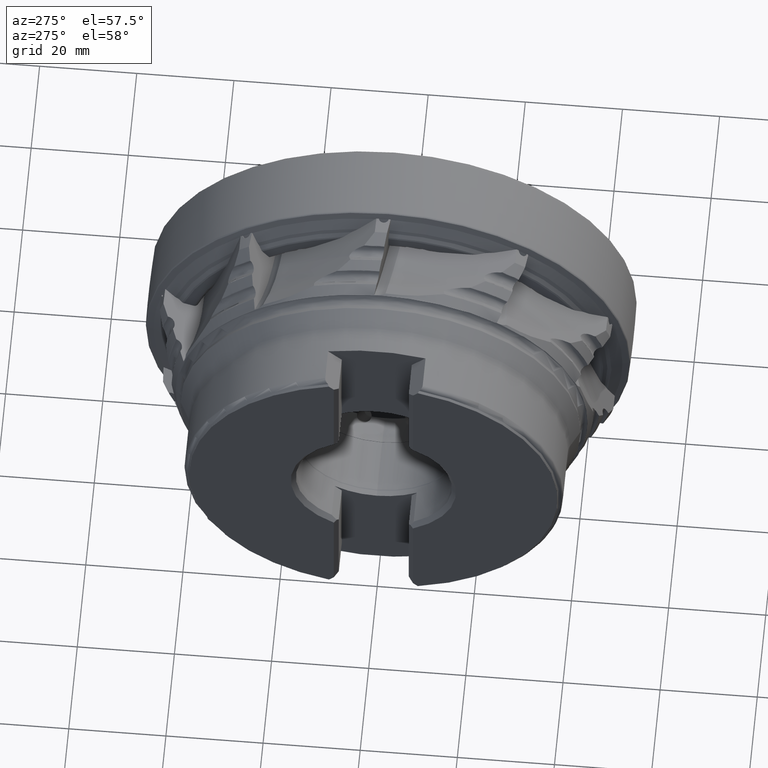
[diagram: clean part render]
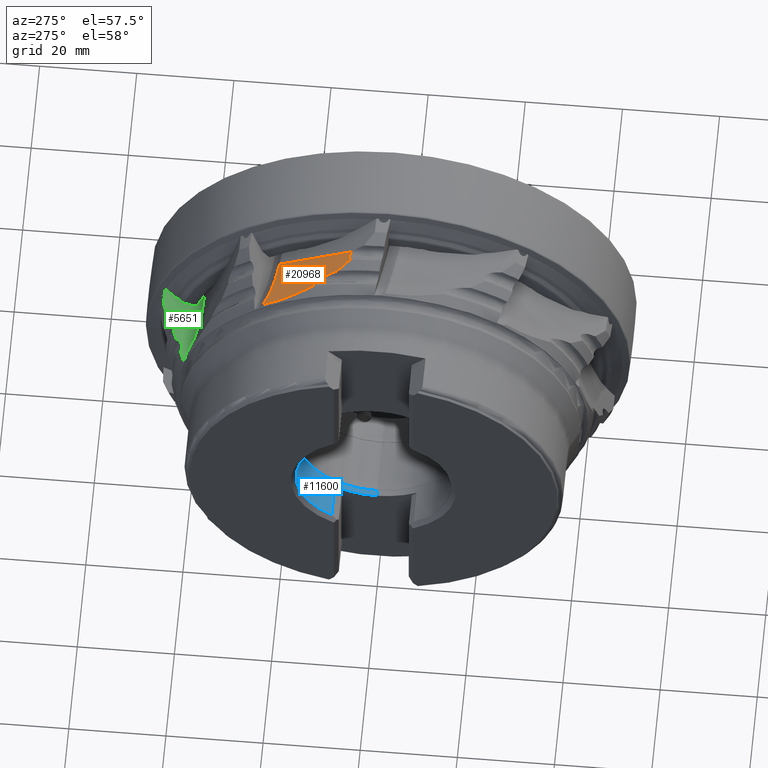
[diagram: same view with three faces highlighted in distinct colors, each labeled with its STEP entity id]
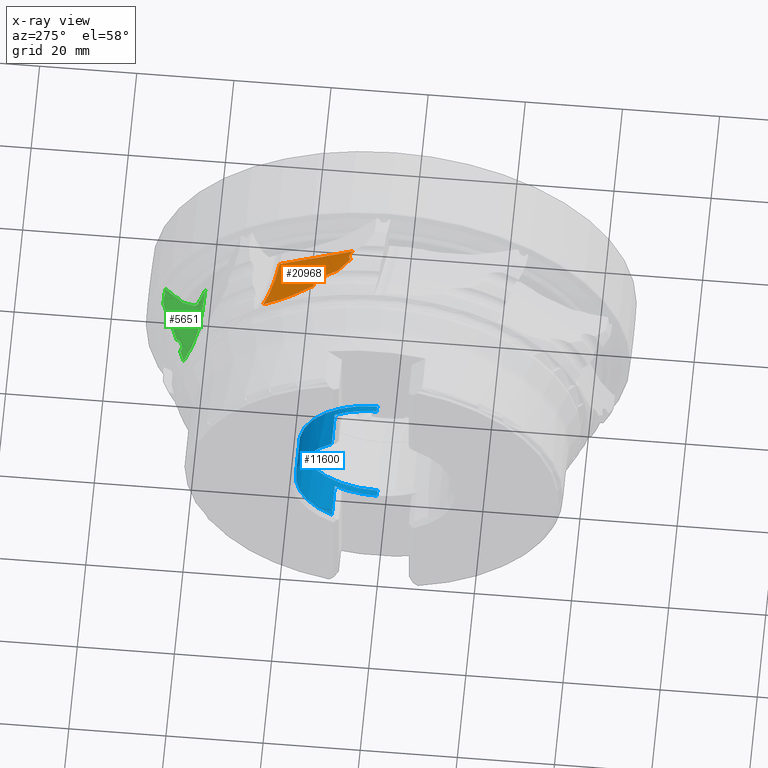
[diagram: x-ray of the same camera — body ghosted, the three highlighted faces saturated]
A machine part, auxiliary view with three faces highlighted in distinct colors.
The next image is the same camera in x-ray (body ghosted, the three faces saturated) — at least one of them is partly hidden behind the body in this view.
Their STEP definitions:

[orange] entity #20968 — the highlighted cylindrical surface (partial cylindrical patch) has radius 28 mm, axis along (0.1392, 0.8011, -0.5821).
#353 = ORIENTED_EDGE ( 'NONE', *, *, #2107, .F. ) ;
#714 = CARTESIAN_POINT ( 'NONE',  ( -18.18918041566172761, 40.19257685339723452, 55.46904006461861769 ) ) ;
#800 = CARTESIAN_POINT ( 'NONE',  ( -23.03409179718986266, 7.044118574288702028, 45.02435332535845447 ) ) ;
#877 = EDGE_CURVE ( 'NONE', #1981, #7855, #17546, .T. ) ;
#1087 = ORIENTED_EDGE ( 'NONE', *, *, #877, .F. ) ;
#1208 = CARTESIAN_POINT ( 'NONE',  ( -27.07497787964696201, 14.27244650816292726, 40.81565486928966635 ) ) ;
#1319 = CARTESIAN_POINT ( 'NONE',  ( -25.05482573333789631, 9.512889654847704435, 43.56328651314723999 ) ) ;
#1333 = CARTESIAN_POINT ( 'NONE',  ( -26.72532341960266677, 14.17027873603239740, 40.77836875804748473 ) ) ;
#1540 = CARTESIAN_POINT ( 'NONE',  ( -27.31591779571575884, 14.16987948358504568, 40.96089669837865443 ) ) ;
#1549 = EDGE_LOOP ( 'NONE', ( #353, #5532, #19638, #11902, #1087, #11925, #7132, #13696, #21440, #10460, #9828 ) ) ;
#1981 = VERTEX_POINT ( 'NONE', #15173 ) ;
#2107 = EDGE_CURVE ( 'NONE', #9624, #15590, #22100, .T. ) ;
#2169 = CARTESIAN_POINT ( 'NONE',  ( -23.05000000000050164, 7.059552992101698621, 45.01470226519708007 ) ) ;
#2233 = EDGE_CURVE ( 'NONE', #5417, #10005, #14829, .T. ) ;
#2278 = DIRECTION ( 'NONE',  ( 0.1391731009600655489, 0.8011436965987820402, -0.5820649666224535501 ) ) ;
#2388 = CARTESIAN_POINT ( 'NONE',  ( -22.93827435148161697, 7.008692015442258061, 45.04179523510972416 ) ) ;
#2607 = CARTESIAN_POINT ( 'NONE',  ( -22.88075694319212161, 7.029482086195025126, 45.02248342708438145 ) ) ;
#2804 = CARTESIAN_POINT ( 'NONE',  ( -25.14768867587290657, 10.19223871036903262, 43.11022617272362822 ) ) ;
#3115 = EDGE_CURVE ( 'NONE', #9692, #4079, #20855, .T. ) ;
#3125 = CARTESIAN_POINT ( 'NONE',  ( -26.66500952554514114, 14.12589208070728297, 40.79064592021736502 ) ) ;
#3329 = B_SPLINE_CURVE_WITH_KNOTS ( 'NONE', 3,
 ( #8981, #14260, #6943, #7066, #9081, #21039 ),
 .UNSPECIFIED., .F., .F.,
 ( 4, 2, 4 ),
 ( 0.004184788278402151208, 0.004613843619188201864, 0.005042898959974253387 ),
 .UNSPECIFIED. ) ;
#3568 = DIRECTION ( 'NONE',  ( 0.1391731009600655489, 0.8011436965987839276, -0.5820649666224511076 ) ) ;
#3734 = DIRECTION ( 'NONE',  ( 0.0000000000000000000, 0.5877852522924801315, 0.8090169943749422332 ) ) ;
#3833 = CARTESIAN_POINT ( 'NONE',  ( -23.76897510292745608, 7.806502856513447774, 44.54359357852328571 ) ) ;
#3863 = CARTESIAN_POINT ( 'NONE',  ( -22.86225597063971904, 7.044831233458568320, 45.01012155648952984 ) ) ;
#3957 = FACE_OUTER_BOUND ( 'NONE', #1549, .T. ) ;
#4021 = CARTESIAN_POINT ( 'NONE',  ( -21.89722909810100759, 7.292179398105697707, 44.77810380523596478 ) ) ;
#4079 = VERTEX_POINT ( 'NONE', #4383 ) ;
#4302 = CARTESIAN_POINT ( 'NONE',  ( -29.05687147438967344, 21.06957390992598889, 37.08798238179066686 ) ) ;
#4383 = CARTESIAN_POINT ( 'NONE',  ( -18.49250115703378583, 21.98853758284340287, 34.08514540616158683 ) ) ;
#4473 = CARTESIAN_POINT ( 'NONE',  ( -26.61025351607529998, 14.07800118091926045, 40.80716772707933160 ) ) ;
#4490 = CARTESIAN_POINT ( 'NONE',  ( -23.04239162819497722, 7.051648584460336266, 45.01968765348214419 ) ) ;
#5152 = CARTESIAN_POINT ( 'NONE',  ( -27.36225597063975457, 14.12869536699201944, 41.00348554707708360 ) ) ;
#5220 = VERTEX_POINT ( 'NONE', #21694 ) ;
#5417 = VERTEX_POINT ( 'NONE', #19326 ) ;
#5474 = CARTESIAN_POINT ( 'NONE',  ( -27.54999999999984084, 14.29725802973900350, 40.95222224599405081 ) ) ;
#5532 = ORIENTED_EDGE ( 'NONE', *, *, #16631, .F. ) ;
#5712 = CARTESIAN_POINT ( 'NONE',  ( -21.15278180356288829, 6.674751682778775397, 45.21126212732767868 ) ) ;
#5751 = CARTESIAN_POINT ( 'NONE',  ( -27.54999999999984084, 14.29725802973900350, 40.95222224599405081 ) ) ;
#5769 = EDGE_CURVE ( 'NONE', #19080, #1981, #21714, .T. ) ;
#5976 = CARTESIAN_POINT ( 'NONE',  ( -27.54999999999984084, 14.29725802973900350, 40.95222224599405081 ) ) ;
#6833 = CARTESIAN_POINT ( 'NONE',  ( -27.51483147124378448, 14.21001099131706091, 40.99888405754033727 ) ) ;
#6943 = CARTESIAN_POINT ( 'NONE',  ( -22.40270588028369403, 7.315713357386206539, 44.78521422323704115 ) ) ;
#7015 = EDGE_CURVE ( 'NONE', #9692, #5220, #10902, .T. ) ;
#7066 = CARTESIAN_POINT ( 'NONE',  ( -22.65833207554619833, 7.208553967120678863, 44.87815390640953694 ) ) ;
#7132 = ORIENTED_EDGE ( 'NONE', *, *, #18418, .F. ) ;
#7184 = CARTESIAN_POINT ( 'NONE',  ( -27.37049416836428861, 14.12137347956846511, 41.01105717371307691 ) ) ;
#7218 = DIRECTION ( 'NONE',  ( 0.1391731009600655489, 0.8011436965987839276, -0.5820649666224511076 ) ) ;
#7285 = CARTESIAN_POINT ( 'NONE',  ( -21.70575503313449417, 7.208149531218372097, 44.83250066330364803 ) ) ;
#7754 = CARTESIAN_POINT ( 'NONE',  ( -22.98806546424032859, 7.016620082485690801, 45.04014508040408771 ) ) ;
#7855 = VERTEX_POINT ( 'NONE', #15525 ) ;
#7872 = CARTESIAN_POINT ( 'NONE',  ( -22.87097694937565606, 7.036839147965686436, 45.01648697679569011 ) ) ;
#7964 = CARTESIAN_POINT ( 'NONE',  ( -22.86225597063971904, 7.044831233458568320, 45.01012155648952984 ) ) ;
#8150 = CIRCLE ( 'NONE', #16769, 27.99999999999999289 ) ;
#8166 = CARTESIAN_POINT ( 'NONE',  ( -25.07751989943581350, 9.575852784239042848, 43.52392934915535960 ) ) ;
#8981 = CARTESIAN_POINT ( 'NONE',  ( -22.11025351607510814, 7.330344202248188168, 44.75970489416600628 ) ) ;
#9081 = CARTESIAN_POINT ( 'NONE',  ( -22.76713590368475337, 7.132001231872457936, 44.94069366074846528 ) ) ;
#9234 = CARTESIAN_POINT ( 'NONE',  ( -22.91528225458630885, 7.012653737581437952, 45.03715965577215741 ) ) ;
#9458 = CARTESIAN_POINT ( 'NONE',  ( -22.96875926489109432, 7.010549442643108087, 45.04290537695627705 ) ) ;
#9482 = CARTESIAN_POINT ( 'NONE',  ( -28.60548200079674430, 17.67753020868321912, 39.09715725689263621 ) ) ;
#9555 = CARTESIAN_POINT ( 'NONE',  ( -26.52861266414754127, 14.00659616261828688, 40.83180163303156007 ) ) ;
#9624 = VERTEX_POINT ( 'NONE', #15999 ) ;
#9670 = CARTESIAN_POINT ( 'NONE',  ( -26.45778736481229743, 13.92666398311700782, 40.86590305081360697 ) ) ;
#9692 = VERTEX_POINT ( 'NONE', #10493 ) ;
#9708 = EDGE_CURVE ( 'NONE', #15590, #22255, #11089, .T. ) ;
#9770 = CARTESIAN_POINT ( 'NONE',  ( -26.27326181786795090, 13.68128732095335920, 40.98131064707077797 ) ) ;
#9828 = ORIENTED_EDGE ( 'NONE', *, *, #9708, .F. ) ;
#10005 = VERTEX_POINT ( 'NONE', #4473 ) ;
#10006 = CARTESIAN_POINT ( 'NONE',  ( -26.92950267975929535, 14.26273195065376953, 40.77732840007612936 ) ) ;
#10432 = DIRECTION ( 'NONE',  ( 0.0000000000000000000, 0.5877852522924803536, 0.8090169943749422332 ) ) ;
#10460 = ORIENTED_EDGE ( 'NONE', *, *, #15494, .T. ) ;
#10493 = CARTESIAN_POINT ( 'NONE',  ( -21.15278180356288829, 6.674751682778775397, 45.21126212732767868 ) ) ;
#10686 = CARTESIAN_POINT ( 'NONE',  ( -21.61816057976198735, 7.153391243240824870, 44.86983780226262297 ) ) ;
#10710 = CARTESIAN_POINT ( 'NONE',  ( -24.42282978799852700, 8.607818017451689840, 44.07411107330644029 ) ) ;
#10902 = B_SPLINE_CURVE_WITH_KNOTS ( 'NONE', 3,
 ( #5712, #21040, #15495, #10686, #7285, #4021, #20707, #19363 ),
 .UNSPECIFIED., .F., .F.,
 ( 4, 2, 2, 4 ),
 ( 0.002908404984752742308, 0.003546596631577443072, 0.003865692454989797140, 0.004184788278402151208 ),
 .UNSPECIFIED. ) ;
#11067 = CARTESIAN_POINT ( 'NONE',  ( -28.18336056904109554, 15.97800415583452249, 40.03915441516062401 ) ) ;
#11089 = B_SPLINE_CURVE_WITH_KNOTS ( 'NONE', 3,
 ( #5976, #11067, #9482, #12944, #4302, #19829, #18268, #14537 ),
 .UNSPECIFIED., .F., .F.,
 ( 4, 2, 2, 4 ),
 ( 6.262014086584779682E-07, 0.005950006829646360164, 0.008924697143765212073, 0.01189938745788406312 ),
 .UNSPECIFIED. ) ;
#11568 = CARTESIAN_POINT ( 'NONE',  ( -27.14420331115534069, 14.25791032703319772, 40.84715321324355841 ) ) ;
#11687 = CARTESIAN_POINT ( 'NONE',  ( -26.61025351607529998, 14.07800118091926045, 40.80716772707933160 ) ) ;
#11690 = CARTESIAN_POINT ( 'NONE',  ( -25.33020451591697153, 11.27674826255521445, 42.39814872951827596 ) ) ;
#11895 = CARTESIAN_POINT ( 'NONE',  ( -27.36225597063975457, 14.12869536699201944, 41.00348554707708360 ) ) ;
#11902 = ORIENTED_EDGE ( 'NONE', *, *, #20655, .F. ) ;
#11925 = ORIENTED_EDGE ( 'NONE', *, *, #5769, .F. ) ;
#12695 = CARTESIAN_POINT ( 'NONE',  ( -22.95870276764276596, 7.009452919015749295, 45.04288157858866271 ) ) ;
#12944 = CARTESIAN_POINT ( 'NONE',  ( -28.97707214502448636, 20.22198678765009205, 37.60052451648574134 ) ) ;
#12998 = CARTESIAN_POINT ( 'NONE',  ( -26.33046585146535179, 13.76466104369751342, 40.94031269152485208 ) ) ;
#13317 = CARTESIAN_POINT ( 'NONE',  ( -25.12498767638404118, 9.829248756873134596, 43.35736288121538706 ) ) ;
#13589 = CARTESIAN_POINT ( 'NONE',  ( -27.38024484281535820, 14.11515855693089705, 41.01837823849936626 ) ) ;
#13696 = ORIENTED_EDGE ( 'NONE', *, *, #7015, .F. ) ;
#13799 = CARTESIAN_POINT ( 'NONE',  ( -27.45405251571193261, 14.12845190170784448, 41.03349520196991307 ) ) ;
#14030 = CARTESIAN_POINT ( 'NONE',  ( -27.40375987371568556, 14.10982268680071705, 41.02958399114699262 ) ) ;
#14260 = CARTESIAN_POINT ( 'NONE',  ( -22.25522661094828791, 7.342403826088844454, 44.75772987681708770 ) ) ;
#14537 = CARTESIAN_POINT ( 'NONE',  ( -29.08411906360955257, 24.44086823913502826, 34.92800826023181315 ) ) ;
#14632 = CARTESIAN_POINT ( 'NONE',  ( -23.02501505855357777, 7.037324629641829254, 45.02843697689729652 ) ) ;
#14719 = CARTESIAN_POINT ( 'NONE',  ( -26.11305360123136055, 13.42701315857588895, 41.11107768046861821 ) ) ;
#14738 = CARTESIAN_POINT ( 'NONE',  ( -23.05000000000050164, 7.059552992101698621, 45.01470226519708007 ) ) ;
#14829 = B_SPLINE_CURVE_WITH_KNOTS ( 'NONE', 3,
 ( #15046, #2804, #18213, #11690, #19896, #21600, #20008, #20219, #14719, #9770, #12998, #9670, #9555, #21818 ),
 .UNSPECIFIED., .F., .F.,
 ( 4, 2, 2, 2, 2, 2, 4 ),
 ( 3.858238429675468253E-06, 0.001313378694118953098, 0.002622899149808230641, 0.003932419605497507534, 0.004587179833342149016, 0.004914559947264467155, 0.005241940061186785293 ),
 .UNSPECIFIED. ) ;
#15029 = CARTESIAN_POINT ( 'NONE',  ( -25.11136169306243815, 9.702129614327203555, 43.44282276031998435 ) ) ;
#15046 = CARTESIAN_POINT ( 'NONE',  ( -25.12498767638404118, 9.829248756873134596, 43.35736288121538706 ) ) ;
#15173 = CARTESIAN_POINT ( 'NONE',  ( -23.05000000000050164, 7.059552992101698621, 45.01470226519708007 ) ) ;
#15232 = B_SPLINE_CURVE_WITH_KNOTS ( 'NONE', 3,
 ( #11687, #3125, #1333, #16941, #10006, #1208, #11568, #18422, #1540, #11895 ),
 .UNSPECIFIED., .F., .F.,
 ( 4, 2, 2, 2, 4 ),
 ( 0.005241940061186785293, 0.005461511858820969692, 0.005681083656455154958, 0.005900655454089340224, 0.006120227251723524622 ),
 .UNSPECIFIED. ) ;
#15494 = EDGE_CURVE ( 'NONE', #4079, #22255, #8150, .T. ) ;
#15495 = CARTESIAN_POINT ( 'NONE',  ( -21.38125024982534583, 6.970364208957432695, 44.99748838194354761 ) ) ;
#15525 = CARTESIAN_POINT ( 'NONE',  ( -25.01442926651007426, 9.455038498291493454, 43.59593784192771437 ) ) ;
#15590 = VERTEX_POINT ( 'NONE', #5751 ) ;
#15999 = CARTESIAN_POINT ( 'NONE',  ( -27.36225597063975457, 14.12869536699201944, 41.00348554707708360 ) ) ;
#16091 = CARTESIAN_POINT ( 'NONE',  ( -22.97875511630827816, 7.013079120281933143, 45.04191003802085902 ) ) ;
#16096 = CARTESIAN_POINT ( 'NONE',  ( -18.49250115703378583, 21.98853758284340287, 34.08514540616158683 ) ) ;
#16192 = CARTESIAN_POINT ( 'NONE',  ( -22.90271266561570940, 7.017412490541067527, 45.03278778095292267 ) ) ;
#16298 = CARTESIAN_POINT ( 'NONE',  ( -23.01398219335901274, 7.029066523020950363, 45.03340069555606817 ) ) ;
#16631 = EDGE_CURVE ( 'NONE', #10005, #9624, #15232, .T. ) ;
#16699 = CARTESIAN_POINT ( 'NONE',  ( -25.01442926651007426, 9.455038498291493454, 43.59593784192771437 ) ) ;
#16769 = AXIS2_PLACEMENT_3D ( 'NONE', #19001, #3568, #10432 ) ;
#16938 = B_SPLINE_CURVE_WITH_KNOTS ( 'NONE', 3,
 ( #16699, #1319, #8166, #15029, #21917, #13317 ),
 .UNSPECIFIED., .F., .F.,
 ( 4, 2, 4 ),
 ( 3.795735967427663926E-07, 0.0002305850263719746746, 0.0004607904791472065961 ),
 .UNSPECIFIED. ) ;
#16941 = CARTESIAN_POINT ( 'NONE',  ( -26.85634870981018096, 14.23861192840376688, 40.77139005841761588 ) ) ;
#17399 = AXIS2_PLACEMENT_3D ( 'NONE', #714, #7218, #3734 ) ;
#17546 = B_SPLINE_CURVE_WITH_KNOTS ( 'NONE', 3,
 ( #2169, #3833, #10710, #17569 ),
 .UNSPECIFIED., .F., .F.,
 ( 4, 4 ),
 ( 3.159450513051299220E-07, 0.003407694063517321351 ),
 .UNSPECIFIED. ) ;
#17569 = CARTESIAN_POINT ( 'NONE',  ( -25.01442926651007426, 9.455038498291493454, 43.59593784192771437 ) ) ;
#18122 = CARTESIAN_POINT ( 'NONE',  ( -22.92848353392788141, 7.010379051593850441, 45.03982124762364947 ) ) ;
#18213 = CARTESIAN_POINT ( 'NONE',  ( -25.19487005596116092, 10.55408590621579101, 42.86907385133032022 ) ) ;
#18268 = CARTESIAN_POINT ( 'NONE',  ( -29.12864436314151106, 23.60617532761582638, 35.48565305159611682 ) ) ;
#18418 = EDGE_CURVE ( 'NONE', #5220, #19080, #3329, .T. ) ;
#18422 = CARTESIAN_POINT ( 'NONE',  ( -27.26372194362873103, 14.20641083130707294, 40.91962613422030870 ) ) ;
#18689 = CARTESIAN_POINT ( 'NONE',  ( -27.53345745296497782, 14.25335914622205813, 40.97607037970471566 ) ) ;
#18696 = CARTESIAN_POINT ( 'NONE',  ( -29.08411906360955257, 24.44086823913502826, 34.92800826023181315 ) ) ;
#18784 = CARTESIAN_POINT ( 'NONE',  ( -27.41747669478789007, 14.11160733588613425, 41.03284895974601199 ) ) ;
#19001 = CARTESIAN_POINT ( 'NONE',  ( -18.49250115703378583, 38.44652464703284522, 56.73762124865996270 ) ) ;
#19080 = VERTEX_POINT ( 'NONE', #3863 ) ;
#19326 = CARTESIAN_POINT ( 'NONE',  ( -25.12498767638404118, 9.829248756873134596, 43.35736288121538706 ) ) ;
#19363 = CARTESIAN_POINT ( 'NONE',  ( -22.11025351607510814, 7.330344202248188168, 44.75970489416600628 ) ) ;
#19598 = CARTESIAN_POINT ( 'NONE',  ( -23.00154654961680123, 7.021747282256537659, 45.03758947834806037 ) ) ;
#19638 = ORIENTED_EDGE ( 'NONE', *, *, #2233, .F. ) ;
#19665 = VECTOR ( 'NONE', #2278, 1000.000000000000114 ) ;
#19829 = CARTESIAN_POINT ( 'NONE',  ( -29.13277295706415160, 22.76041727116636082, 36.03139818290510732 ) ) ;
#19896 = CARTESIAN_POINT ( 'NONE',  ( -25.41828181051395319, 11.63755348864192385, 42.16833653830756390 ) ) ;
#20008 = CARTESIAN_POINT ( 'NONE',  ( -25.77122065532267214, 12.71998165208583487, 41.50650305776363069 ) ) ;
#20219 = CARTESIAN_POINT ( 'NONE',  ( -26.02107818437424669, 13.25149939139576460, 41.20682970688499580 ) ) ;
#20655 = EDGE_CURVE ( 'NONE', #7855, #5417, #16938, .T. ) ;
#20707 = CARTESIAN_POINT ( 'NONE',  ( -22.00243453636858249, 7.321375252945352408, 44.76117374847778763 ) ) ;
#20855 = LINE ( 'NONE', #16096, #19665 ) ;
#20926 = CARTESIAN_POINT ( 'NONE',  ( -27.47128123409752831, 14.14910099351568284, 41.02532452893153447 ) ) ;
#20968 = ADVANCED_FACE ( 'NONE', ( #3957 ), #21193, .F. ) ;
#21039 = CARTESIAN_POINT ( 'NONE',  ( -22.86225597063971904, 7.044831233458568320, 45.01012155648952984 ) ) ;
#21040 = CARTESIAN_POINT ( 'NONE',  ( -21.25751975606572231, 6.826403375590522238, 45.10108072305605020 ) ) ;
#21193 = CYLINDRICAL_SURFACE ( 'NONE', #17399, 27.99999999999985079 ) ;
#21398 = CARTESIAN_POINT ( 'NONE',  ( -22.89164379097408286, 7.023497320668325550, 45.02759288920519509 ) ) ;
#21440 = ORIENTED_EDGE ( 'NONE', *, *, #3115, .T. ) ;
#21600 = CARTESIAN_POINT ( 'NONE',  ( -25.63931821207564710, 12.35905697239691570, 41.72276288704821923 ) ) ;
#21694 = CARTESIAN_POINT ( 'NONE',  ( -22.11025351607510814, 7.330344202248188168, 44.75970489416600628 ) ) ;
#21714 = B_SPLINE_CURVE_WITH_KNOTS ( 'NONE', 3,
 ( #7964, #7872, #2607, #21398, #16192, #9234, #18122, #2388, #21724, #12695, #9458, #16091, #7754, #19598, #16298, #14632, #800, #4490, #14738 ),
 .UNSPECIFIED., .F., .F.,
 ( 4, 3, 3, 3, 3, 3, 4 ),
 ( 3.064303210317868947E-07, 4.060563775485823666E-05, 8.186183602677746393E-05, 0.0001122934866108112875, 0.0001426337222344236625, 0.0001867248913620106606, 0.0002227577963883417425 ),
 .UNSPECIFIED. ) ;
#21724 = CARTESIAN_POINT ( 'NONE',  ( -22.94863317182934281, 7.008354967168826555, 45.04285774922372099 ) ) ;
#21818 = CARTESIAN_POINT ( 'NONE',  ( -26.61025351607529998, 14.07800118091926045, 40.80716772707933160 ) ) ;
#21917 = CARTESIAN_POINT ( 'NONE',  ( -25.12100576120579731, 9.765577762734876544, 43.40071240030314925 ) ) ;
#22100 = B_SPLINE_CURVE_WITH_KNOTS ( 'NONE', 3,
 ( #5152, #7184, #13589, #14030, #18784, #13799, #20926, #6833, #18689, #5474 ),
 .UNSPECIFIED., .F., .F.,
 ( 4, 2, 2, 2, 4 ),
 ( 3.230959094066211947E-07, 4.019676544925178624E-05, 8.007043498909695875E-05, 0.0001598177740687851218, 0.0003193124522281586561 ),
 .UNSPECIFIED. ) ;
#22255 = VERTEX_POINT ( 'NONE', #18696 ) ;

[blue] entity #11600 — the highlighted cylindrical surface (partial cylindrical patch) has radius 16.075 mm, axis along (1, -0, -0).
#193 = ORIENTED_EDGE ( 'NONE', *, *, #11504, .F. ) ;
#509 = CIRCLE ( 'NONE', #18834, 16.07499999999999218 ) ;
#617 = CARTESIAN_POINT ( 'NONE',  ( -40.99999999999998579, 8.652214652934496542, -13.54787092496624012 ) ) ;
#657 = CIRCLE ( 'NONE', #3520, 16.07499999999999218 ) ;
#903 = DIRECTION ( 'NONE',  ( -1.000000000000000000, -0.0000000000000000000, -0.0000000000000000000 ) ) ;
#1205 = ORIENTED_EDGE ( 'NONE', *, *, #8010, .T. ) ;
#1905 = DIRECTION ( 'NONE',  ( 1.000000000000000000, -0.0000000000000000000, -0.0000000000000000000 ) ) ;
#2687 = VERTEX_POINT ( 'NONE', #9740 ) ;
#3234 = CARTESIAN_POINT ( 'NONE',  ( 0.0000000000000000000, 1.968619729629369163E-15, 16.07499999999999218 ) ) ;
#3359 = DIRECTION ( 'NONE',  ( 0.0000000000000000000, 0.0000000000000000000, -1.000000000000000000 ) ) ;
#3410 = DIRECTION ( 'NONE',  ( 0.0000000000000000000, 0.0000000000000000000, -1.000000000000000000 ) ) ;
#3520 = AXIS2_PLACEMENT_3D ( 'NONE', #20485, #1905, #5042 ) ;
#3569 = VERTEX_POINT ( 'NONE', #11875 ) ;
#3998 = ORIENTED_EDGE ( 'NONE', *, *, #10164, .T. ) ;
#4110 = CARTESIAN_POINT ( 'NONE',  ( -48.04999999999999716, 8.652214652934496542, -13.54787092496624012 ) ) ;
#4153 = VERTEX_POINT ( 'NONE', #11389 ) ;
#4175 = LINE ( 'NONE', #19720, #8847 ) ;
#4298 = EDGE_CURVE ( 'NONE', #2687, #21606, #657, .T. ) ;
#4421 = CARTESIAN_POINT ( 'NONE',  ( -40.99999999999998579, 0.0000000000000000000, 0.0000000000000000000 ) ) ;
#4553 = AXIS2_PLACEMENT_3D ( 'NONE', #21238, #12438, #19341 ) ;
#5042 = DIRECTION ( 'NONE',  ( 0.0000000000000000000, 0.0000000000000000000, -1.000000000000000000 ) ) ;
#5542 = ORIENTED_EDGE ( 'NONE', *, *, #4298, .T. ) ;
#5735 = CARTESIAN_POINT ( 'NONE',  ( -40.99999999999998579, 8.652214652934478778, 13.54787092496623835 ) ) ;
#6296 = CARTESIAN_POINT ( 'NONE',  ( -39.74999999999999289, 1.968619729629369163E-15, 16.07499999999999218 ) ) ;
#6388 = CARTESIAN_POINT ( 'NONE',  ( -48.04999999999999716, 8.652214652934496542, 13.54787092496624012 ) ) ;
#6873 = CYLINDRICAL_SURFACE ( 'NONE', #8040, 16.07499999999999218 ) ;
#7190 = EDGE_CURVE ( 'NONE', #4153, #21606, #20116, .T. ) ;
#7296 = VERTEX_POINT ( 'NONE', #6388 ) ;
#7982 = ORIENTED_EDGE ( 'NONE', *, *, #7190, .F. ) ;
#8010 = EDGE_CURVE ( 'NONE', #17094, #7296, #4175, .T. ) ;
#8040 = AXIS2_PLACEMENT_3D ( 'NONE', #11865, #20631, #3410 ) ;
#8425 = CARTESIAN_POINT ( 'NONE',  ( -48.04999999999999716, 0.0000000000000000000, 0.0000000000000000000 ) ) ;
#8795 = VECTOR ( 'NONE', #10102, 1000.000000000000000 ) ;
#8847 = VECTOR ( 'NONE', #17924, 1000.000000000000000 ) ;
#9005 = CARTESIAN_POINT ( 'NONE',  ( 0.0000000000000000000, 0.0000000000000000000, -16.07499999999999218 ) ) ;
#9511 = ORIENTED_EDGE ( 'NONE', *, *, #9975, .F. ) ;
#9740 = CARTESIAN_POINT ( 'NONE',  ( -39.74999999999999289, 0.0000000000000000000, -16.07499999999999218 ) ) ;
#9975 = EDGE_CURVE ( 'NONE', #14036, #13677, #16506, .T. ) ;
#10102 = DIRECTION ( 'NONE',  ( 1.000000000000000000, -0.0000000000000000000, -0.0000000000000000000 ) ) ;
#10164 = EDGE_CURVE ( 'NONE', #4153, #17094, #18954, .T. ) ;
#10591 = LINE ( 'NONE', #9005, #12846 ) ;
#11389 = CARTESIAN_POINT ( 'NONE',  ( -40.99999999999998579, 1.968619729629369163E-15, 16.07499999999999218 ) ) ;
#11504 = EDGE_CURVE ( 'NONE', #3569, #14036, #509, .T. ) ;
#11600 = ADVANCED_FACE ( 'NONE', ( #21890 ), #6873, .F. ) ;
#11865 = CARTESIAN_POINT ( 'NONE',  ( 0.0000000000000000000, 0.0000000000000000000, 0.0000000000000000000 ) ) ;
#11875 = CARTESIAN_POINT ( 'NONE',  ( -40.99999999999998579, 0.0000000000000000000, -16.07499999999999218 ) ) ;
#12081 = EDGE_LOOP ( 'NONE', ( #7982, #3998, #1205, #17704, #9511, #193, #15783, #5542 ) ) ;
#12438 = DIRECTION ( 'NONE',  ( -1.000000000000000000, -0.0000000000000000000, 0.0000000000000000000 ) ) ;
#12846 = VECTOR ( 'NONE', #15978, 1000.000000000000000 ) ;
#13543 = CIRCLE ( 'NONE', #20405, 16.07499999999999218 ) ;
#13677 = VERTEX_POINT ( 'NONE', #4110 ) ;
#14036 = VERTEX_POINT ( 'NONE', #617 ) ;
#14445 = DIRECTION ( 'NONE',  ( 1.000000000000000000, 0.0000000000000000000, -0.0000000000000000000 ) ) ;
#15783 = ORIENTED_EDGE ( 'NONE', *, *, #16082, .T. ) ;
#15978 = DIRECTION ( 'NONE',  ( 1.000000000000000000, -0.0000000000000000000, -0.0000000000000000000 ) ) ;
#16082 = EDGE_CURVE ( 'NONE', #3569, #2687, #10591, .T. ) ;
#16242 = EDGE_CURVE ( 'NONE', #13677, #7296, #13543, .T. ) ;
#16506 = LINE ( 'NONE', #21607, #17866 ) ;
#17094 = VERTEX_POINT ( 'NONE', #5735 ) ;
#17704 = ORIENTED_EDGE ( 'NONE', *, *, #16242, .F. ) ;
#17866 = VECTOR ( 'NONE', #903, 1000.000000000000000 ) ;
#17924 = DIRECTION ( 'NONE',  ( -1.000000000000000000, -0.0000000000000000000, -0.0000000000000000000 ) ) ;
#18168 = DIRECTION ( 'NONE',  ( 0.0000000000000000000, 0.0000000000000000000, 1.000000000000000000 ) ) ;
#18834 = AXIS2_PLACEMENT_3D ( 'NONE', #4421, #14445, #18168 ) ;
#18954 = CIRCLE ( 'NONE', #4553, 16.07499999999999218 ) ;
#19341 = DIRECTION ( 'NONE',  ( 0.0000000000000000000, 0.0000000000000000000, -1.000000000000000000 ) ) ;
#19720 = CARTESIAN_POINT ( 'NONE',  ( -40.99999999999998579, 8.652214652934496542, 13.54787092496624012 ) ) ;
#20116 = LINE ( 'NONE', #3234, #8795 ) ;
#20405 = AXIS2_PLACEMENT_3D ( 'NONE', #8425, #22280, #3359 ) ;
#20485 = CARTESIAN_POINT ( 'NONE',  ( -39.74999999999999289, 0.0000000000000000000, 0.0000000000000000000 ) ) ;
#20631 = DIRECTION ( 'NONE',  ( 1.000000000000000000, -0.0000000000000000000, -0.0000000000000000000 ) ) ;
#21238 = CARTESIAN_POINT ( 'NONE',  ( -40.99999999999998579, 0.0000000000000000000, 0.0000000000000000000 ) ) ;
#21606 = VERTEX_POINT ( 'NONE', #6296 ) ;
#21607 = CARTESIAN_POINT ( 'NONE',  ( -40.99999999999998579, 8.652214652934496542, -13.54787092496624012 ) ) ;
#21890 = FACE_OUTER_BOUND ( 'NONE', #12081, .T. ) ;
#22280 = DIRECTION ( 'NONE',  ( 1.000000000000000000, -0.0000000000000000000, -0.0000000000000000000 ) ) ;

[green] entity #5651 — the highlighted planar face has unit normal (0.1392, 0.306, -0.9418).
#41 = ORIENTED_EDGE ( 'NONE', *, *, #17632, .T. ) ;
#65 = CARTESIAN_POINT ( 'NONE',  ( -28.85889681586586164, 41.06207182986967297, 11.85707995710343710 ) ) ;
#120 = CARTESIAN_POINT ( 'NONE',  ( -14.26436304448837689, 38.28110035403611988, 13.11017111519740475 ) ) ;
#171 = CARTESIAN_POINT ( 'NONE',  ( -18.18918041566172761, 38.01525071651072096, 12.44380780819679622 ) ) ;
#188 = ORIENTED_EDGE ( 'NONE', *, *, #16103, .T. ) ;
#232 = VERTEX_POINT ( 'NONE', #3449 ) ;
#273 = VECTOR ( 'NONE', #11985, 1000.000000000000114 ) ;
#310 = CARTESIAN_POINT ( 'NONE',  ( -27.54999999999996518, 41.61621871399290029, 12.23055329914913791 ) ) ;
#528 = AXIS2_PLACEMENT_3D ( 'NONE', #19426, #8830, #14097 ) ;
#530 = CARTESIAN_POINT ( 'NONE',  ( -21.91225450656369134, 43.27813525172520315, 13.60365141530141209 ) ) ;
#655 = CARTESIAN_POINT ( 'NONE',  ( -20.60815139525679029, 44.58109931386444913, 14.21972182544309682 ) ) ;
#749 = CARTESIAN_POINT ( 'NONE',  ( -18.00000000000000355, 45.95288486025422969, 15.05085731218701639 ) ) ;
#771 = CARTESIAN_POINT ( 'NONE',  ( -25.12498767638401276, 42.54744213188959634, 12.89147839355171676 ) ) ;
#913 = B_SPLINE_CURVE_WITH_KNOTS ( 'NONE', 3,
 ( #8654, #20942, #12480, #3708 ),
 .UNSPECIFIED., .F., .F.,
 ( 4, 4 ),
 ( 2.180229262052932820E-05, 0.002235107255530598917 ),
 .UNSPECIFIED. ) ;
#976 = VERTEX_POINT ( 'NONE', #13135 ) ;
#1053 = CARTESIAN_POINT ( 'NONE',  ( -25.49346500555133233, 41.79422959785307512, 12.59229366590586707 ) ) ;
#1140 = ORIENTED_EDGE ( 'NONE', *, *, #9669, .T. ) ;
#1347 = EDGE_CURVE ( 'NONE', #14132, #10825, #9788, .T. ) ;
#1418 = ORIENTED_EDGE ( 'NONE', *, *, #19861, .T. ) ;
#1427 = EDGE_CURVE ( 'NONE', #5427, #14966, #19199, .T. ) ;
#1513 = CARTESIAN_POINT ( 'NONE',  ( -13.15655230187313585, 63.59644841766150591, 21.49933125440436044 ) ) ;
#1533 = B_SPLINE_CURVE_WITH_KNOTS ( 'NONE', 3,
 ( #12770, #17985, #2575, #18083, #9542, #16372, #11336, #11675, #10304, #6695 ),
 .UNSPECIFIED., .F., .F.,
 ( 4, 2, 2, 2, 4 ),
 ( 7.083415050421728791E-07, 0.0003436961698135057022, 0.0006866839981219692969, 0.001029671826430432783, 0.001372659654738896378 ),
 .UNSPECIFIED. ) ;
#1602 = CARTESIAN_POINT ( 'NONE',  ( -16.07615115868660993, 43.23282675433777200, 14.45135050197435511 ) ) ;
#1606 = CARTESIAN_POINT ( 'NONE',  ( -18.00000000000000355, 45.95288486025422969, 15.05085731218701639 ) ) ;
#1705 = EDGE_CURVE ( 'NONE', #10392, #232, #17846, .T. ) ;
#1740 = CARTESIAN_POINT ( 'NONE',  ( -16.77123972252613626, 41.98800327010214062, 13.94416724807167007 ) ) ;
#1882 = CARTESIAN_POINT ( 'NONE',  ( -22.11025351607529998, 43.27712879189963502, 13.57406541407523726 ) ) ;
#2015 = CARTESIAN_POINT ( 'NONE',  ( -20.50174160158823611, 44.84670550721206439, 14.32174704383530184 ) ) ;
#2043 = CARTESIAN_POINT ( 'NONE',  ( -27.54999999999996518, 41.61621871399290029, 12.23055329914913791 ) ) ;
#2108 = CARTESIAN_POINT ( 'NONE',  ( -26.87174058011910915, 41.39047843955354722, 12.25743452382943488 ) ) ;
#2110 = B_SPLINE_CURVE_WITH_KNOTS ( 'NONE', 3,
 ( #15643, #19153, #10711, #17570 ),
 .UNSPECIFIED., .F., .F.,
 ( 4, 4 ),
 ( 2.294557984193158737E-07, 0.0001964993589752323422 ),
 .UNSPECIFIED. ) ;
#2126 = CARTESIAN_POINT ( 'NONE',  ( -16.82688640704520822, 39.77447529871948717, 13.21672531342480816 ) ) ;
#2235 = CARTESIAN_POINT ( 'NONE',  ( -21.17777771194548819, 43.53102056622573457, 13.79435495235325604 ) ) ;
#2575 = CARTESIAN_POINT ( 'NONE',  ( -16.17544676595474584, 38.93191257301421615, 13.03922552528359446 ) ) ;
#2582 = VERTEX_POINT ( 'NONE', #15012 ) ;
#2596 = CARTESIAN_POINT ( 'NONE',  ( -25.07327051157708553, 42.66259619721775209, 12.93653663765597095 ) ) ;
#2675 = EDGE_CURVE ( 'NONE', #976, #9532, #12382, .T. ) ;
#2686 = CARTESIAN_POINT ( 'NONE',  ( -22.11025351607529998, 43.27712879189963502, 13.57406541407523726 ) ) ;
#2737 = CARTESIAN_POINT ( 'NONE',  ( -26.61025351607521117, 41.38000994215022388, 12.29267392976081652 ) ) ;
#2946 = CARTESIAN_POINT ( 'NONE',  ( -25.15036719118155162, 42.37750417019137217, 12.83251178600809439 ) ) ;
#3176 = CARTESIAN_POINT ( 'NONE',  ( -15.91121431757422044, 43.74552710257503207, 14.64231021765754903 ) ) ;
#3189 = PLANE ( 'NONE',  #14135 ) ;
#3449 = CARTESIAN_POINT ( 'NONE',  ( -15.00860808076330777, 38.53100727708689988, 13.08139119316587973 ) ) ;
#3510 = CARTESIAN_POINT ( 'NONE',  ( -13.52023560062882090, 38.03082715544498882, 13.13881465006309845 ) ) ;
#3708 = CARTESIAN_POINT ( 'NONE',  ( -16.80658297735512718, 41.87848131962110898, 13.90335861701188591 ) ) ;
#4067 = CARTESIAN_POINT ( 'NONE',  ( -22.37249770691133932, 43.28815957792557612, 13.53889682360816948 ) ) ;
#4184 = CARTESIAN_POINT ( 'NONE',  ( -25.20719998606809042, 42.21729097068272551, 12.77205698777260245 ) ) ;
#4210 = ORIENTED_EDGE ( 'NONE', *, *, #6522, .F. ) ;
#4509 = CARTESIAN_POINT ( 'NONE',  ( -26.52127673044563849, 41.37644780322592197, 12.30466492089771258 ) ) ;
#4903 = CARTESIAN_POINT ( 'NONE',  ( -20.50174160158823611, 44.84670550721206439, 14.32174704383530184 ) ) ;
#5066 = ORIENTED_EDGE ( 'NONE', *, *, #12915, .T. ) ;
#5096 = ORIENTED_EDGE ( 'NONE', *, *, #18648, .T. ) ;
#5147 = VERTEX_POINT ( 'NONE', #771 ) ;
#5186 = CIRCLE ( 'NONE', #528, 28.50000000000001066 ) ;
#5187 = CARTESIAN_POINT ( 'NONE',  ( -16.15861840414018502, 42.97647618530515246, 14.35587068946630751 ) ) ;
#5328 = ORIENTED_EDGE ( 'NONE', *, *, #1347, .T. ) ;
#5349 =( BOUNDED_CURVE ( )  B_SPLINE_CURVE ( 3, ( #6758, #10476, #8662, #1606 ),
 .UNSPECIFIED., .F., .F. ) 
 B_SPLINE_CURVE_WITH_KNOTS ( ( 4, 4 ),
 ( 1.664757710672040369, 1.674062565787044266 ),
 .UNSPECIFIED. ) 
 CURVE ( )  GEOMETRIC_REPRESENTATION_ITEM ( )  RATIONAL_B_SPLINE_CURVE ( ( 1.000000000000000000, 0.9999927849856213857, 0.9999927849856213857, 1.000000000000000000 ) ) 
 REPRESENTATION_ITEM ( '' )  );
#5427 = VERTEX_POINT ( 'NONE', #5773 ) ;
#5453 = CARTESIAN_POINT ( 'NONE',  ( -22.01066193072002619, 43.27293966776866085, 13.58742127018842716 ) ) ;
#5459 = CARTESIAN_POINT ( 'NONE',  ( -20.61075359440243915, 44.67703045226414815, 14.25050720603152854 ) ) ;
#5507 = EDGE_CURVE ( 'NONE', #18938, #2582, #19006, .T. ) ;
#5651 = ADVANCED_FACE ( 'NONE', ( #18499 ), #3189, .F. ) ;
#5773 = CARTESIAN_POINT ( 'NONE',  ( -15.91121431757422044, 43.74552710257503207, 14.64231021765754903 ) ) ;
#5785 = ORIENTED_EDGE ( 'NONE', *, *, #9129, .T. ) ;
#5974 = CARTESIAN_POINT ( 'NONE',  ( -26.17059441684649101, 41.42240913461751717, 12.37142017304615038 ) ) ;
#6135 = VERTEX_POINT ( 'NONE', #2686 ) ;
#6321 = CARTESIAN_POINT ( 'NONE',  ( -25.91998666455963019, 41.50104581226151623, 12.43400393273093307 ) ) ;
#6385 = CARTESIAN_POINT ( 'NONE',  ( -16.33927135019581200, 42.72000530049012923, 14.24584255127746069 ) ) ;
#6450 = CARTESIAN_POINT ( 'NONE',  ( -15.00860808076330777, 38.53100727708689988, 13.08139119316587973 ) ) ;
#6522 = EDGE_CURVE ( 'NONE', #7393, #14966, #13406, .T. ) ;
#6695 = CARTESIAN_POINT ( 'NONE',  ( -16.82688640704520822, 39.77447529871948717, 13.21672531342480816 ) ) ;
#6758 = CARTESIAN_POINT ( 'NONE',  ( -14.77910986886061373, 45.85535841809632274, 15.49513086717328747 ) ) ;
#6853 = CARTESIAN_POINT ( 'NONE',  ( -15.99368311592049352, 43.48917705542174872, 14.54683034524217788 ) ) ;
#6855 = CARTESIAN_POINT ( 'NONE',  ( -12.77623244843185546, 37.78016905852193474, 13.16731475688077779 ) ) ;
#6883 = CARTESIAN_POINT ( 'NONE',  ( -23.04999999999996163, 43.51519031366048296, 13.51254677840417884 ) ) ;
#6992 = CARTESIAN_POINT ( 'NONE',  ( -22.86225597063941350, 43.50088585805031016, 13.53564254857298188 ) ) ;
#7045 = CARTESIAN_POINT ( 'NONE',  ( -20.65033920459258709, 44.30074726315906730, 14.12239568716614180 ) ) ;
#7232 = CARTESIAN_POINT ( 'NONE',  ( -15.16606808066900847, 45.04752376964048466, 15.17546735623436227 ) ) ;
#7264 = CARTESIAN_POINT ( 'NONE',  ( -20.61075359440243915, 44.67703045226414815, 14.25050720603152854 ) ) ;
#7374 = CARTESIAN_POINT ( 'NONE',  ( -18.18918041566172761, 38.01525071651072096, 12.44380780819679622 ) ) ;
#7393 = VERTEX_POINT ( 'NONE', #16035 ) ;
#7471 = EDGE_CURVE ( 'NONE', #20095, #16549, #9588, .T. ) ;
#7585 = CARTESIAN_POINT ( 'NONE',  ( -18.83408537090282309, 45.58449178991188688, 14.80790353433416406 ) ) ;
#7614 = CARTESIAN_POINT ( 'NONE',  ( -29.51312943833609026, 40.78456312333959488, 11.67023374742859509 ) ) ;
#7990 = CARTESIAN_POINT ( 'NONE',  ( -25.12498767638401276, 42.54744213188959634, 12.89147839355171676 ) ) ;
#8108 = ORIENTED_EDGE ( 'NONE', *, *, #5507, .T. ) ;
#8164 = ORIENTED_EDGE ( 'NONE', *, *, #15812, .T. ) ;
#8593 = CARTESIAN_POINT ( 'NONE',  ( -16.70055271372934413, 42.20704700286896838, 14.02578452930072572 ) ) ;
#8612 = CARTESIAN_POINT ( 'NONE',  ( -27.13262760618641423, 41.46658744555853815, 12.24361168165260239 ) ) ;
#8654 = CARTESIAN_POINT ( 'NONE',  ( -16.82688640704520822, 39.77447529871948717, 13.21672531342480816 ) ) ;
#8662 = CARTESIAN_POINT ( 'NONE',  ( -16.92686800877964970, 45.92106154918071326, 15.19909763170258010 ) ) ;
#8685 = CARTESIAN_POINT ( 'NONE',  ( -27.36225597063941706, 41.60229459609961111, 12.25377264853337778 ) ) ;
#8830 = DIRECTION ( 'NONE',  ( 0.1391731009600656044, 0.3060096622279948608, -0.9418008996556904711 ) ) ;
#8962 = VERTEX_POINT ( 'NONE', #14128 ) ;
#9028 = CARTESIAN_POINT ( 'NONE',  ( -15.53865546071780201, 44.39653340073388677, 14.90888926732560193 ) ) ;
#9032 = ORIENTED_EDGE ( 'NONE', *, *, #1705, .T. ) ;
#9064 = CARTESIAN_POINT ( 'NONE',  ( -21.62109049051436216, 43.33120146421943275, 13.66391996333889836 ) ) ;
#9129 = EDGE_CURVE ( 'NONE', #17556, #10392, #20784, .T. ) ;
#9338 = ORIENTED_EDGE ( 'NONE', *, *, #2675, .T. ) ;
#9532 = VERTEX_POINT ( 'NONE', #10284 ) ;
#9542 = CARTESIAN_POINT ( 'NONE',  ( -16.47991791901073455, 39.09557503156662506, 13.04740995061186482 ) ) ;
#9588 = B_SPLINE_CURVE_WITH_KNOTS ( 'NONE', 3,
 ( #749, #7585, #14454, #18519 ),
 .UNSPECIFIED., .F., .F.,
 ( 4, 4 ),
 ( 2.262670884769069442E-07, 0.002831117572954873398 ),
 .UNSPECIFIED. ) ;
#9669 = EDGE_CURVE ( 'NONE', #6135, #11343, #12151, .T. ) ;
#9788 = B_SPLINE_CURVE_WITH_KNOTS ( 'NONE', 3,
 ( #8685, #17364, #17143, #10736 ),
 .UNSPECIFIED., .F., .F.,
 ( 4, 4 ),
 ( 2.292592993333015101E-07, 0.0001964931021860910545 ),
 .UNSPECIFIED. ) ;
#10179 = VERTEX_POINT ( 'NONE', #2126 ) ;
#10190 = EDGE_CURVE ( 'NONE', #8962, #6135, #22075, .T. ) ;
#10284 = CARTESIAN_POINT ( 'NONE',  ( -16.70055271372934413, 42.20704700286896838, 14.02578452930072572 ) ) ;
#10304 = CARTESIAN_POINT ( 'NONE',  ( -16.82307090698532903, 39.66556555788292115, 13.18190222285048918 ) ) ;
#10372 = ORIENTED_EDGE ( 'NONE', *, *, #15270, .T. ) ;
#10392 = VERTEX_POINT ( 'NONE', #20745 ) ;
#10476 = CARTESIAN_POINT ( 'NONE',  ( -15.85323021875439586, 45.88855250057483204, 15.34718988518575067 ) ) ;
#10711 = CARTESIAN_POINT ( 'NONE',  ( -22.99084247538558756, 43.54009140515372422, 13.52937954077301264 ) ) ;
#10736 = CARTESIAN_POINT ( 'NONE',  ( -27.54999999999996518, 41.61621871399290029, 12.23055329914913791 ) ) ;
#10774 = CARTESIAN_POINT ( 'NONE',  ( -20.61563684391950702, 44.48666966071223072, 14.18793362118588597 ) ) ;
#10825 = VERTEX_POINT ( 'NONE', #2043 ) ;
#10877 = CARTESIAN_POINT ( 'NONE',  ( -20.78795281437238529, 43.94791325251075875, 13.98741733953993105 ) ) ;
#10968 = CARTESIAN_POINT ( 'NONE',  ( -23.04999999999996163, 43.51519031366048296, 13.51254677840417884 ) ) ;
#11029 = B_SPLINE_CURVE_WITH_KNOTS ( 'NONE', 3,
 ( #7990, #2946, #4184, #18365, #1053, #13038, #6321, #5974, #18143, #18265, #4509, #2737 ),
 .UNSPECIFIED., .F., .F.,
 ( 4, 2, 2, 2, 2, 4 ),
 ( 1.415976112033060155E-06, 0.0005386868336422933516, 0.001075957691172553651, 0.001613228548702814059, 0.001881863977467939384, 0.002150499406233064709 ),
 .UNSPECIFIED. ) ;
#11336 = CARTESIAN_POINT ( 'NONE',  ( -16.70649456748423844, 39.35169914163579108, 13.09714772178477560 ) ) ;
#11343 = VERTEX_POINT ( 'NONE', #17274 ) ;
#11434 = B_SPLINE_CURVE_WITH_KNOTS ( 'NONE', 3,
 ( #15576, #2108, #8612, #20545 ),
 .UNSPECIFIED., .F., .F.,
 ( 4, 4 ),
 ( 0.002150499406233064709, 0.002939971503578513948 ),
 .UNSPECIFIED. ) ;
#11579 = CARTESIAN_POINT ( 'NONE',  ( -25.01442926651050414, 42.68741792791145429, 12.95329687644055205 ) ) ;
#11634 = CARTESIAN_POINT ( 'NONE',  ( -15.63578968043669448, 38.77187271157893633, 13.06697237296163117 ) ) ;
#11675 = CARTESIAN_POINT ( 'NONE',  ( -16.79734140800306719, 39.55543279761808151, 13.14992005483559012 ) ) ;
#11695 = ORIENTED_EDGE ( 'NONE', *, *, #13105, .F. ) ;
#11730 = ORIENTED_EDGE ( 'NONE', *, *, #16893, .T. ) ;
#11767 = DIRECTION ( 'NONE',  ( -0.08630754905045698311, -0.9436891648713141567, -0.3193771549146631195 ) ) ;
#11985 = DIRECTION ( 'NONE',  ( 0.9902680687415702510, -0.04300685335651925623, 0.1323614845610740498 ) ) ;
#12151 = B_SPLINE_CURVE_WITH_KNOTS ( 'NONE', 3,
 ( #14071, #4067, #20966, #6992 ),
 .UNSPECIFIED., .F., .F.,
 ( 4, 4 ),
 ( 0.005504539332060896274, 0.006293201315476612719 ),
 .UNSPECIFIED. ) ;
#12183 = CARTESIAN_POINT ( 'NONE',  ( -16.80658297735512718, 41.87848131962110898, 13.90335861701188591 ) ) ;
#12217 = CARTESIAN_POINT ( 'NONE',  ( -20.61268958911018245, 44.74840169105305421, 14.27341103877956918 ) ) ;
#12382 = B_SPLINE_CURVE_WITH_KNOTS ( 'NONE', 3,
 ( #12183, #1740, #13526, #8593 ),
 .UNSPECIFIED., .F., .F.,
 ( 4, 4 ),
 ( 6.909644306976625687E-07, 0.0003670049404300265348 ),
 .UNSPECIFIED. ) ;
#12480 = CARTESIAN_POINT ( 'NONE',  ( -16.81335079189027226, 41.17714597956328504, 13.67448084854295054 ) ) ;
#12559 = ORIENTED_EDGE ( 'NONE', *, *, #21183, .T. ) ;
#12715 = ORIENTED_EDGE ( 'NONE', *, *, #17802, .T. ) ;
#12770 = CARTESIAN_POINT ( 'NONE',  ( -15.94941566485802120, 38.89221161423044038, 13.05972728130501004 ) ) ;
#12915 = EDGE_CURVE ( 'NONE', #16549, #8962, #14401, .T. ) ;
#13030 = EDGE_CURVE ( 'NONE', #21119, #10179, #1533, .T. ) ;
#13038 = CARTESIAN_POINT ( 'NONE',  ( -25.76441759004713106, 41.58224402523127594, 12.48337579917827256 ) ) ;
#13104 = CARTESIAN_POINT ( 'NONE',  ( -16.70055271372934413, 42.20704700286896838, 14.02578452930072572 ) ) ;
#13105 = EDGE_CURVE ( 'NONE', #17556, #16439, #5186, .T. ) ;
#13135 = CARTESIAN_POINT ( 'NONE',  ( -16.80658297735512718, 41.87848131962110898, 13.90335861701188591 ) ) ;
#13406 = LINE ( 'NONE', #1513, #15982 ) ;
#13526 = CARTESIAN_POINT ( 'NONE',  ( -16.73589630000851258, 42.09752516407723277, 13.98497588555147964 ) ) ;
#13898 = CARTESIAN_POINT ( 'NONE',  ( -21.34673836840147132, 43.42913455696132985, 13.73628229410883961 ) ) ;
#14071 = CARTESIAN_POINT ( 'NONE',  ( -22.11025351607529998, 43.27712879189963502, 13.57406541407523726 ) ) ;
#14097 = DIRECTION ( 'NONE',  ( 0.0000000000000000000, 0.9510565162951566398, 0.3090169943749381809 ) ) ;
#14128 = CARTESIAN_POINT ( 'NONE',  ( -20.61075359440243915, 44.67703045226414815, 14.25050720603152854 ) ) ;
#14132 = VERTEX_POINT ( 'NONE', #18500 ) ;
#14135 = AXIS2_PLACEMENT_3D ( 'NONE', #20174, #19951, #18378 ) ;
#14160 = EDGE_CURVE ( 'NONE', #232, #21119, #20484, .T. ) ;
#14401 = B_SPLINE_CURVE_WITH_KNOTS ( 'NONE', 3,
 ( #2015, #20907, #12217, #5459 ),
 .UNSPECIFIED., .F., .F.,
 ( 4, 4 ),
 ( 2.231327079328364447E-07, 0.0002248041610351660482 ),
 .UNSPECIFIED. ) ;
#14434 = CARTESIAN_POINT ( 'NONE',  ( -23.70493058637561745, 43.23951132742922709, 13.32619194040854538 ) ) ;
#14454 = CARTESIAN_POINT ( 'NONE',  ( -19.66800396171334597, 45.21577417820036260, 14.56486895225595468 ) ) ;
#14512 = CARTESIAN_POINT ( 'NONE',  ( -18.00000000000000355, 45.95288486025422969, 15.05085731218701639 ) ) ;
#14636 = ORIENTED_EDGE ( 'NONE', *, *, #14160, .T. ) ;
#14808 = CARTESIAN_POINT ( 'NONE',  ( -26.61025351607521117, 41.38000994215022388, 12.29267392976081652 ) ) ;
#14877 = CARTESIAN_POINT ( 'NONE',  ( -15.94941566485802120, 38.89221161423044038, 13.05972728130501004 ) ) ;
#14966 = VERTEX_POINT ( 'NONE', #21310 ) ;
#15012 = CARTESIAN_POINT ( 'NONE',  ( -25.01442926651050414, 42.68741792791145429, 12.95329687644055205 ) ) ;
#15171 = B_SPLINE_CURVE_WITH_KNOTS ( 'NONE', 3,
 ( #310, #20681, #65, #17286 ),
 .UNSPECIFIED., .F., .F.,
 ( 4, 4 ),
 ( 2.245344010815997556E-07, 0.002204648770605785804 ),
 .UNSPECIFIED. ) ;
#15181 = VERTEX_POINT ( 'NONE', #5187 ) ;
#15270 = EDGE_CURVE ( 'NONE', #2582, #5147, #15828, .T. ) ;
#15576 = CARTESIAN_POINT ( 'NONE',  ( -26.61025351607521117, 41.38000994215022388, 12.29267392976081652 ) ) ;
#15618 = ORIENTED_EDGE ( 'NONE', *, *, #13030, .T. ) ;
#15643 = CARTESIAN_POINT ( 'NONE',  ( -22.86225597063941350, 43.50088585805031016, 13.53564254857298188 ) ) ;
#15645 = CARTESIAN_POINT ( 'NONE',  ( -15.00860808076330777, 38.53100727708689988, 13.08139119316587973 ) ) ;
#15812 = EDGE_CURVE ( 'NONE', #15181, #5427, #17392, .T. ) ;
#15828 = B_SPLINE_CURVE_WITH_KNOTS ( 'NONE', 3,
 ( #11579, #2596, #21827, #21708 ),
 .UNSPECIFIED., .F., .F.,
 ( 4, 4 ),
 ( 2.390130359206006785E-06, 0.0001980554248374330147 ),
 .UNSPECIFIED. ) ;
#15880 = CARTESIAN_POINT ( 'NONE',  ( -14.79345574564935184, 45.69850019844979983, 15.44204460341130236 ) ) ;
#15925 = CARTESIAN_POINT ( 'NONE',  ( -20.89968548920370850, 43.78918675919373982, 13.91933286068155162 ) ) ;
#15982 = VECTOR ( 'NONE', #11767, 999.9999999999998863 ) ;
#16035 = CARTESIAN_POINT ( 'NONE',  ( -14.77910986886061373, 45.85535841809632274, 15.49513086717328747 ) ) ;
#16103 = EDGE_CURVE ( 'NONE', #11343, #18938, #2110, .T. ) ;
#16372 = CARTESIAN_POINT ( 'NONE',  ( -16.64110120715415775, 39.25698927132896898, 13.07603801729183957 ) ) ;
#16439 = VERTEX_POINT ( 'NONE', #7614 ) ;
#16453 = CARTESIAN_POINT ( 'NONE',  ( -15.32218694763812650, 38.65147176872485346, 13.07419387056362758 ) ) ;
#16534 = CARTESIAN_POINT ( 'NONE',  ( -15.94941566485802120, 38.89221161423044038, 13.05972728130501004 ) ) ;
#16549 = VERTEX_POINT ( 'NONE', #4903 ) ;
#16893 = EDGE_CURVE ( 'NONE', #7393, #20095, #5349, .T. ) ;
#16894 = CARTESIAN_POINT ( 'NONE',  ( -16.15861840414018502, 42.97647618530515246, 14.35587068946630751 ) ) ;
#17143 = CARTESIAN_POINT ( 'NONE',  ( -27.49089863886975493, 41.64122526348853626, 12.24741202743226332 ) ) ;
#17274 = CARTESIAN_POINT ( 'NONE',  ( -22.86225597063941350, 43.50088585805031016, 13.53564254857298188 ) ) ;
#17286 = CARTESIAN_POINT ( 'NONE',  ( -29.51312943833609026, 40.78456312333959488, 11.67023374742859509 ) ) ;
#17364 = CARTESIAN_POINT ( 'NONE',  ( -27.41934103403326262, 41.63603106985686253, 12.25629864065024854 ) ) ;
#17392 = B_SPLINE_CURVE_WITH_KNOTS ( 'NONE', 3,
 ( #16894, #1602, #6853, #3176 ),
 .UNSPECIFIED., .F., .F.,
 ( 4, 4 ),
 ( 6.929166616171259158E-07, 0.0008578368361486568821 ),
 .UNSPECIFIED. ) ;
#17556 = VERTEX_POINT ( 'NONE', #7374 ) ;
#17570 = CARTESIAN_POINT ( 'NONE',  ( -23.04999999999996163, 43.51519031366048296, 13.51254677840417884 ) ) ;
#17629 = CARTESIAN_POINT ( 'NONE',  ( -20.67804284830795325, 44.20852151939351415, 14.08833586548417927 ) ) ;
#17632 = EDGE_CURVE ( 'NONE', #10825, #16439, #15171, .T. ) ;
#17666 = VERTEX_POINT ( 'NONE', #14808 ) ;
#17802 = EDGE_CURVE ( 'NONE', #17666, #14132, #11434, .T. ) ;
#17836 = CARTESIAN_POINT ( 'NONE',  ( -24.35974299513861041, 42.96359234091829649, 13.13977658510005320 ) ) ;
#17846 = B_SPLINE_CURVE_WITH_KNOTS ( 'NONE', 3,
 ( #6855, #3510, #120, #15645 ),
 .UNSPECIFIED., .F., .F.,
 ( 4, 4 ),
 ( 0.0009786811544777714120, 0.003335509865420134383 ),
 .UNSPECIFIED. ) ;
#17985 = CARTESIAN_POINT ( 'NONE',  ( -16.06412724556302152, 38.90210995006056294, 13.04599212772479966 ) ) ;
#18010 = ORIENTED_EDGE ( 'NONE', *, *, #1427, .T. ) ;
#18083 = CARTESIAN_POINT ( 'NONE',  ( -16.38476051759937846, 39.02912785342483204, 13.03988168438485218 ) ) ;
#18143 = CARTESIAN_POINT ( 'NONE',  ( -26.25611059263589553, 41.40357147106573166, 12.35266243090131688 ) ) ;
#18265 = CARTESIAN_POINT ( 'NONE',  ( -26.43107179683581975, 41.38052735023129713, 12.31932033388211600 ) ) ;
#18285 = EDGE_LOOP ( 'NONE', ( #8164, #18010, #4210, #11730, #18403, #5066, #20822, #1140, #188, #8108, #10372, #12559, #12715, #5328, #41, #11695, #5785, #9032, #14636, #15618, #1418, #9338, #5096 ) ) ;
#18365 = CARTESIAN_POINT ( 'NONE',  ( -25.37998182754802556, 41.92316840907427178, 12.65095821791425834 ) ) ;
#18378 = DIRECTION ( 'NONE',  ( 0.0000000000000000000, 0.9510565162951565288, 0.3090169943749384029 ) ) ;
#18403 = ORIENTED_EDGE ( 'NONE', *, *, #7471, .T. ) ;
#18499 = FACE_OUTER_BOUND ( 'NONE', #18285, .T. ) ;
#18500 = CARTESIAN_POINT ( 'NONE',  ( -27.36225597063941706, 41.60229459609961111, 12.25377264853337778 ) ) ;
#18519 = CARTESIAN_POINT ( 'NONE',  ( -20.50174160158823611, 44.84670550721206439, 14.32174704383530184 ) ) ;
#18547 = CARTESIAN_POINT ( 'NONE',  ( -16.15861840414018502, 42.97647618530515246, 14.35587068946630751 ) ) ;
#18648 = EDGE_CURVE ( 'NONE', #9532, #15181, #21898, .T. ) ;
#18938 = VERTEX_POINT ( 'NONE', #6883 ) ;
#19006 = B_SPLINE_CURVE_WITH_KNOTS ( 'NONE', 3,
 ( #10968, #14434, #17836, #21311 ),
 .UNSPECIFIED., .F., .F.,
 ( 4, 4 ),
 ( 2.243340726862594487E-07, 0.002204073221491715563 ),
 .UNSPECIFIED. ) ;
#19109 = CARTESIAN_POINT ( 'NONE',  ( -21.71777862624376354, 43.30706319643679336, 13.64178903221102956 ) ) ;
#19153 = CARTESIAN_POINT ( 'NONE',  ( -22.91929394327407010, 43.53470093856005008, 13.53820104033258787 ) ) ;
#19199 = B_SPLINE_CURVE_WITH_KNOTS ( 'NONE', 3,
 ( #19292, #9028, #7232, #15880 ),
 .UNSPECIFIED., .F., .F.,
 ( 4, 4 ),
 ( 4.273344913874364579E-07, 0.002388536047694244952 ),
 .UNSPECIFIED. ) ;
#19292 = CARTESIAN_POINT ( 'NONE',  ( -15.91121431757422044, 43.74552710257503207, 14.64231021765754903 ) ) ;
#19426 = CARTESIAN_POINT ( 'NONE',  ( -18.18918041566173116, 65.12036143092268503, 21.25079214788253879 ) ) ;
#19861 = EDGE_CURVE ( 'NONE', #10179, #976, #913, .T. ) ;
#19951 = DIRECTION ( 'NONE',  ( 0.1391731009600655766, 0.3060096622279949719, -0.9418008996556904711 ) ) ;
#20003 = CARTESIAN_POINT ( 'NONE',  ( -16.51991627273916663, 42.46352900888148696, 14.13581384197639679 ) ) ;
#20095 = VERTEX_POINT ( 'NONE', #14512 ) ;
#20174 = CARTESIAN_POINT ( 'NONE',  ( -18.18918041566173116, 64.23787644464253788, 20.96405539421031250 ) ) ;
#20484 = B_SPLINE_CURVE_WITH_KNOTS ( 'NONE', 3,
 ( #6450, #16453, #11634, #14877 ),
 .UNSPECIFIED., .F., .F.,
 ( 4, 4 ),
 ( 2.142993959499532561E-07, 0.001008210732196458247 ),
 .UNSPECIFIED. ) ;
#20545 = CARTESIAN_POINT ( 'NONE',  ( -27.36225597063941706, 41.60229459609961111, 12.25377264853337778 ) ) ;
#20681 = CARTESIAN_POINT ( 'NONE',  ( -28.20451706960917093, 41.33928408602220372, 12.04385158519065513 ) ) ;
#20745 = CARTESIAN_POINT ( 'NONE',  ( -12.77623244843185546, 37.78016905852193474, 13.16731475688077779 ) ) ;
#20784 = LINE ( 'NONE', #171, #273 ) ;
#20822 = ORIENTED_EDGE ( 'NONE', *, *, #10190, .T. ) ;
#20907 = CARTESIAN_POINT ( 'NONE',  ( -20.56881575758610126, 44.81701394906733782, 14.30218789713016392 ) ) ;
#20942 = CARTESIAN_POINT ( 'NONE',  ( -16.82011860203190068, 40.47581063927556499, 13.44560308064856180 ) ) ;
#20966 = CARTESIAN_POINT ( 'NONE',  ( -22.63302582228968873, 43.36498628862875648, 13.52536021526899823 ) ) ;
#21119 = VERTEX_POINT ( 'NONE', #16534 ) ;
#21183 = EDGE_CURVE ( 'NONE', #5147, #17666, #11029, .T. ) ;
#21310 = CARTESIAN_POINT ( 'NONE',  ( -14.79345574564935184, 45.69850019844979983, 15.44204460341130236 ) ) ;
#21311 = CARTESIAN_POINT ( 'NONE',  ( -25.01442926651050414, 42.68741792791145429, 12.95329687644055205 ) ) ;
#21708 = CARTESIAN_POINT ( 'NONE',  ( -25.12498767638401276, 42.54744213188959634, 12.89147839355171676 ) ) ;
#21827 = CARTESIAN_POINT ( 'NONE',  ( -25.11578242765616409, 42.60907929155229112, 12.91286581145183021 ) ) ;
#21898 = B_SPLINE_CURVE_WITH_KNOTS ( 'NONE', 3,
 ( #13104, #20003, #6385, #18547 ),
 .UNSPECIFIED., .F., .F.,
 ( 4, 4 ),
 ( 3.680807408665629682E-07, 0.0009976999892984731149 ),
 .UNSPECIFIED. ) ;
#22075 = B_SPLINE_CURVE_WITH_KNOTS ( 'NONE', 3,
 ( #7264, #655, #10774, #7045, #17629, #10877, #15925, #2235, #13898, #9064, #19109, #530, #5453, #1882 ),
 .UNSPECIFIED., .F., .F.,
 ( 4, 2, 2, 2, 2, 2, 4 ),
 ( 0.003108479476934103251, 0.003407986958824946091, 0.003707494440715788930, 0.004306509404497490222, 0.004905524368279191513, 0.005205031850170044327, 0.005504539332060896274 ),
 .UNSPECIFIED. ) ;